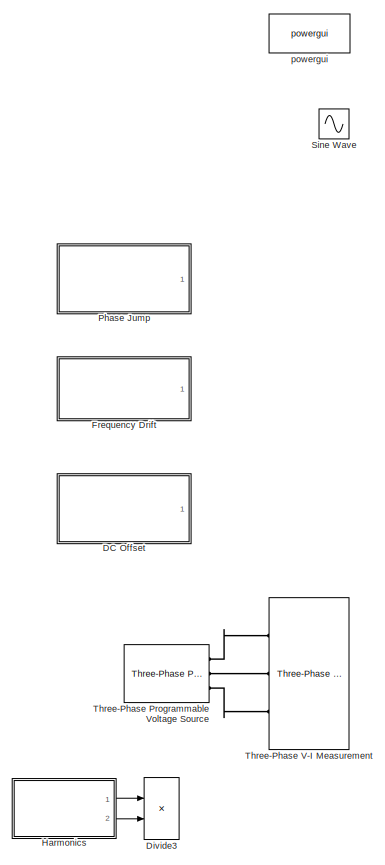
[diagram: root canvas - part 1/2, left side, full height]
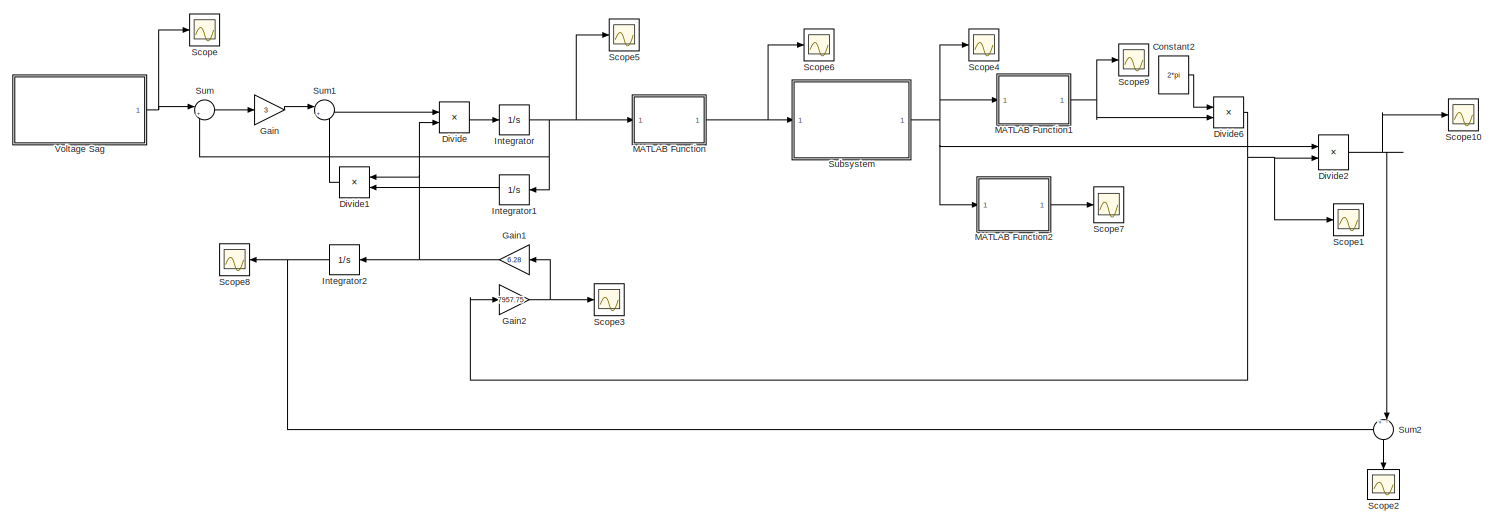
[diagram: root canvas - part 2/2, full width, middle band]
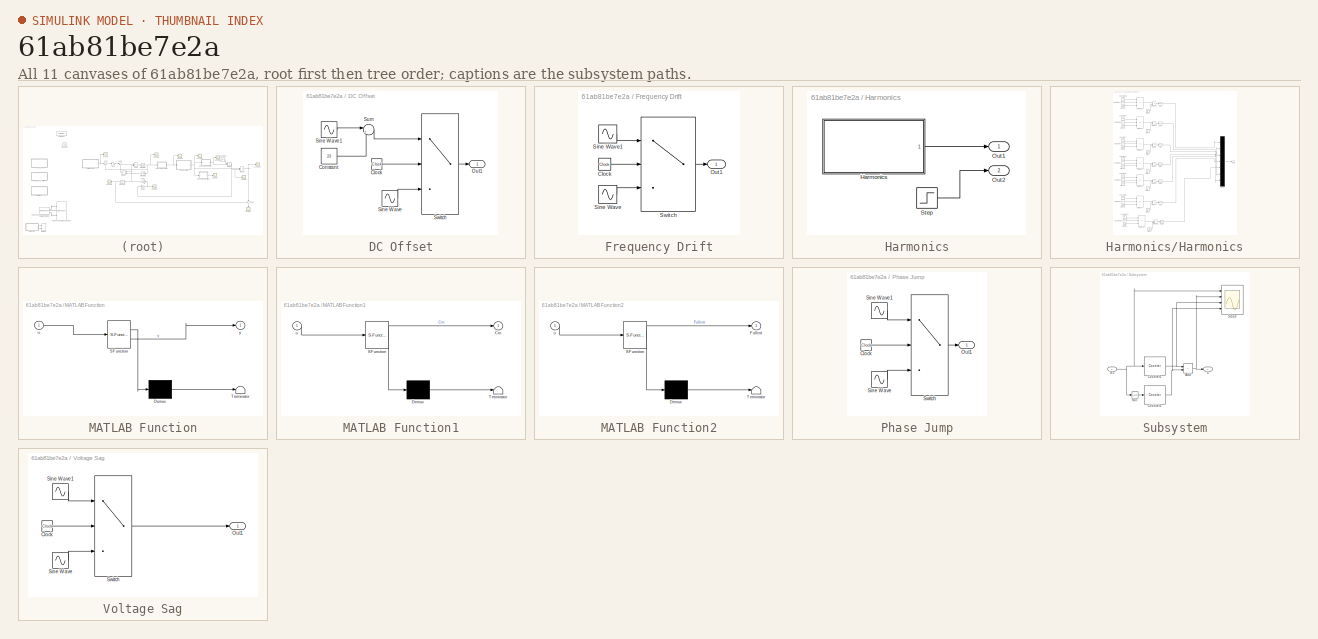
[diagram: thumbnail index - all 11 canvases of the model, root first then tree order]
MODEL slx_61ab81be7e2a
KIND model
CONFIG AbsTol = auto
CONFIG EnableMultiTasking = off
CONFIG FixedStep = auto
CONFIG MaxStep = auto
CONFIG MinStep = auto
CONFIG RelTol = 1e-3
CONFIG SampleTimeConstraint = Unconstrained
CONFIG SolverName = VariableStepAuto
CONFIG StartTime = 0.0
CONFIG StopTime = 2
BLOCK [Constant] Constant2
  Value = 2*pi
BLOCK [SubSystem] DC Offset
  Ports = [0, 1]
  RequestExecContextInheritance = off
BLOCK [Clock] DC Offset/Clock
BLOCK [Constant] DC Offset/Constant
  Value = 23
BLOCK [Outport] DC Offset/Out1
BLOCK [Sin] DC Offset/Sine Wave
  Amplitude = 230
  Frequency = 314.16
  Ports = [0, 1]
  SampleTime = 0.000001
BLOCK [Sin] DC Offset/Sine Wave1
  Amplitude = 230
  Frequency = 314.16
  Ports = [0, 1]
  SampleTime = 0.000001
BLOCK [Sum] DC Offset/Sum
  Inputs = |++
  Ports = [2, 1]
BLOCK [Switch] DC Offset/Switch
  Criteria = u2 > Threshold
  InputSameDT = off
  SaturateOnIntegerOverflow = off
  Threshold = 0.145
BLOCK [Product] Divide
  Inputs = **
  Ports = [2, 1]
BLOCK [Product] Divide1
  Inputs = **
  NameLocation = top
  Ports = [2, 1]
BLOCK [Product] Divide2
  Inputs = **
  Ports = [2, 1]
BLOCK [Product] Divide3
  Inputs = **
  Ports = [2, 1]
BLOCK [Product] Divide6
  Inputs = */
  Ports = [2, 1]
BLOCK [SubSystem] Frequency Drift
  Ports = [0, 1]
  RequestExecContextInheritance = off
BLOCK [Clock] Frequency Drift/Clock
BLOCK [Outport] Frequency Drift/Out1
BLOCK [Sin] Frequency Drift/Sine Wave
  Amplitude = 230
  Frequency = 314.16
  Ports = [0, 1]
  SampleTime = 0.000001
BLOCK [Sin] Frequency Drift/Sine Wave1
  Amplitude = 230
  Frequency = 333.01
  Phase = pi
  Ports = [0, 1]
  SampleTime = 0.000001
BLOCK [Switch] Frequency Drift/Switch
  Criteria = u2 > Threshold
  InputSameDT = off
  SaturateOnIntegerOverflow = off
  Threshold = 0.145
BLOCK [Gain] Gain
  Gain = 3
BLOCK [Gain] Gain1
  Gain = 6.28
  NameLocation = top
BLOCK [Gain] Gain2
  Gain = 7957.75
BLOCK [SubSystem] Harmonics
  Ports = [0, 2]
  RequestExecContextInheritance = off
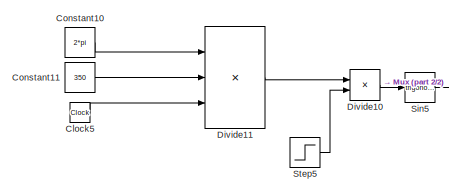
[diagram: Harmonics/Harmonics - part 1/2, top left region]
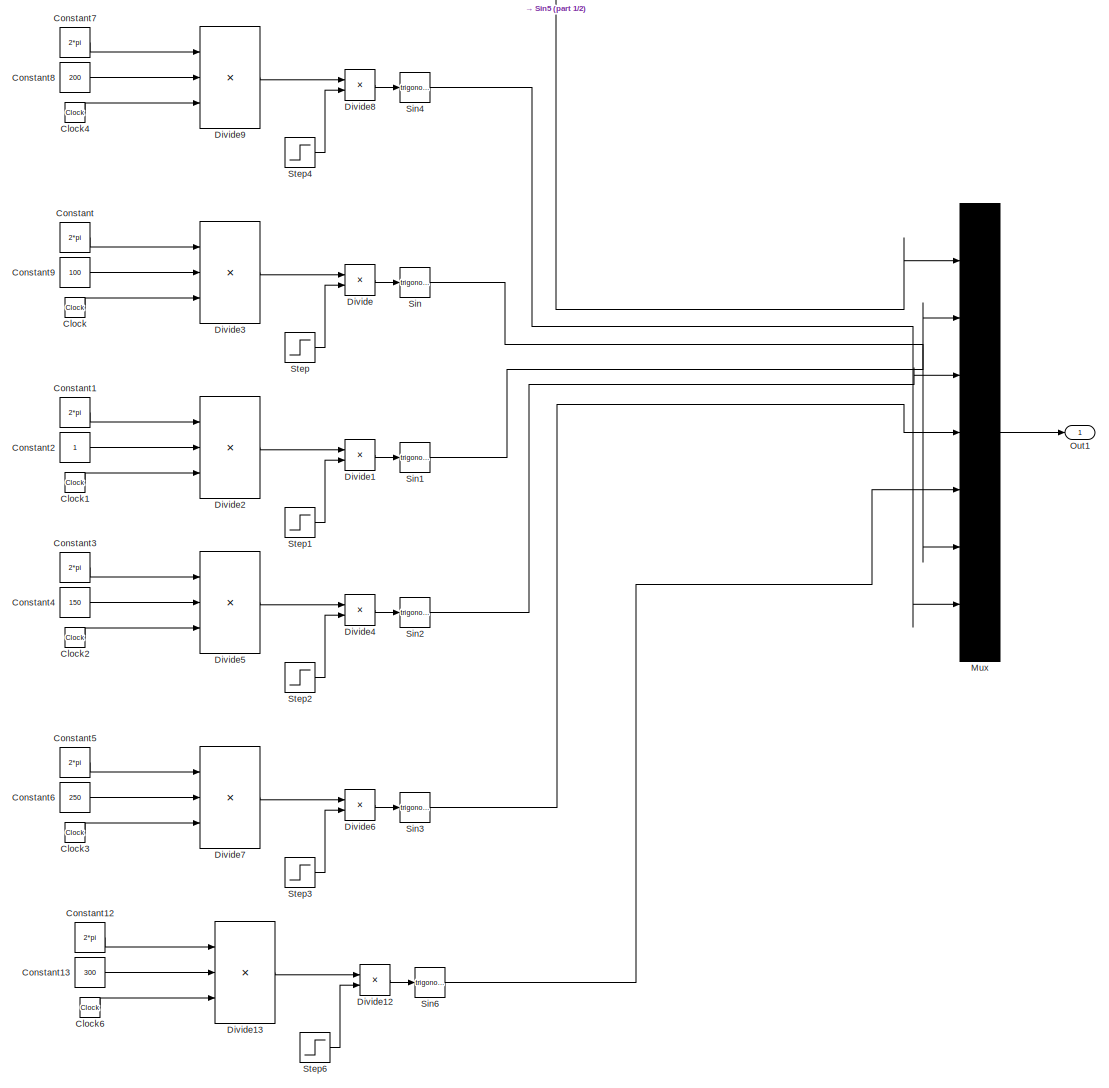
[diagram: Harmonics/Harmonics - part 2/2, most of the canvas]
BLOCK [SubSystem] Harmonics/Harmonics
  Ports = [0, 1]
  RequestExecContextInheritance = off
BLOCK [Clock] Harmonics/Harmonics/Clock
BLOCK [Clock] Harmonics/Harmonics/Clock1
BLOCK [Clock] Harmonics/Harmonics/Clock2
BLOCK [Clock] Harmonics/Harmonics/Clock3
BLOCK [Clock] Harmonics/Harmonics/Clock4
BLOCK [Clock] Harmonics/Harmonics/Clock5
BLOCK [Clock] Harmonics/Harmonics/Clock6
BLOCK [Constant] Harmonics/Harmonics/Constant
  Value = 2*pi
BLOCK [Constant] Harmonics/Harmonics/Constant1
  Value = 2*pi
BLOCK [Constant] Harmonics/Harmonics/Constant10
  Value = 2*pi
BLOCK [Constant] Harmonics/Harmonics/Constant11
  Value = 350
BLOCK [Constant] Harmonics/Harmonics/Constant12
  Value = 2*pi
BLOCK [Constant] Harmonics/Harmonics/Constant13
  Value = 300
BLOCK [Constant] Harmonics/Harmonics/Constant2
BLOCK [Constant] Harmonics/Harmonics/Constant3
  Value = 2*pi
BLOCK [Constant] Harmonics/Harmonics/Constant4
  Value = 150
BLOCK [Constant] Harmonics/Harmonics/Constant5
  Value = 2*pi
BLOCK [Constant] Harmonics/Harmonics/Constant6
  Value = 250
BLOCK [Constant] Harmonics/Harmonics/Constant7
  Value = 2*pi
BLOCK [Constant] Harmonics/Harmonics/Constant8
  Value = 200
BLOCK [Constant] Harmonics/Harmonics/Constant9
  Value = 100
BLOCK [Product] Harmonics/Harmonics/Divide
  Inputs = **
  Ports = [2, 1]
BLOCK [Product] Harmonics/Harmonics/Divide1
  Inputs = **
  Ports = [2, 1]
BLOCK [Product] Harmonics/Harmonics/Divide10
  Inputs = **
  Ports = [2, 1]
BLOCK [Product] Harmonics/Harmonics/Divide11
  Inputs = ***
  Ports = [3, 1]
BLOCK [Product] Harmonics/Harmonics/Divide12
  Inputs = **
  Ports = [2, 1]
BLOCK [Product] Harmonics/Harmonics/Divide13
  Inputs = ***
  Ports = [3, 1]
BLOCK [Product] Harmonics/Harmonics/Divide2
  Inputs = ***
  Ports = [3, 1]
BLOCK [Product] Harmonics/Harmonics/Divide3
  Inputs = ***
  Ports = [3, 1]
BLOCK [Product] Harmonics/Harmonics/Divide4
  Inputs = **
  Ports = [2, 1]
BLOCK [Product] Harmonics/Harmonics/Divide5
  Inputs = ***
  Ports = [3, 1]
BLOCK [Product] Harmonics/Harmonics/Divide6
  Inputs = **
  Ports = [2, 1]
BLOCK [Product] Harmonics/Harmonics/Divide7
  Inputs = ***
  Ports = [3, 1]
BLOCK [Product] Harmonics/Harmonics/Divide8
  Inputs = **
  Ports = [2, 1]
BLOCK [Product] Harmonics/Harmonics/Divide9
  Inputs = ***
  Ports = [3, 1]
BLOCK [Mux] Harmonics/Harmonics/Mux
  DisplayOption = bar
  Inputs = 7
  Ports = [7, 1]
BLOCK [Outport] Harmonics/Harmonics/Out1
BLOCK [Trigonometry] Harmonics/Harmonics/Sin
  Ports = [1, 1]
BLOCK [Trigonometry] Harmonics/Harmonics/Sin1
  Ports = [1, 1]
BLOCK [Trigonometry] Harmonics/Harmonics/Sin2
  Ports = [1, 1]
BLOCK [Trigonometry] Harmonics/Harmonics/Sin3
  Ports = [1, 1]
BLOCK [Trigonometry] Harmonics/Harmonics/Sin4
  Ports = [1, 1]
BLOCK [Trigonometry] Harmonics/Harmonics/Sin5
  Ports = [1, 1]
BLOCK [Trigonometry] Harmonics/Harmonics/Sin6
  Ports = [1, 1]
BLOCK [Step] Harmonics/Harmonics/Step
  After = 11.5
  Before = 230
  SampleTime = 0.000001
  Time = 0.145
BLOCK [Step] Harmonics/Harmonics/Step1
  After = 23
  Before = 230
  SampleTime = 0.000001
  Time = 0.145
BLOCK [Step] Harmonics/Harmonics/Step2
  After = 23
  Before = 230
  SampleTime = 0.000001
  Time = 0.145
BLOCK [Step] Harmonics/Harmonics/Step3
  After = 23
  Before = 230
  SampleTime = 0.000001
  Time = 0.145
BLOCK [Step] Harmonics/Harmonics/Step4
  After = 11.5
  Before = 230
  SampleTime = 0.000001
  Time = 0.145
BLOCK [Step] Harmonics/Harmonics/Step5
  After = 13.8
  Before = 230
  SampleTime = 0.000001
  Time = 0.145
BLOCK [Step] Harmonics/Harmonics/Step6
  After = 6.9
  Before = 230
  SampleTime = 0.000001
  Time = 0.145
BLOCK [Outport] Harmonics/Out1
BLOCK [Outport] Harmonics/Out2
  Port = 2
BLOCK [Step] Harmonics/Step
  After = 230
  Before = 230
  SampleTime = 0.000001
  Time = 0
BLOCK [Integrator] Integrator
  Ports = [1, 1]
BLOCK [Integrator] Integrator1
  NameLocation = top
  Ports = [1, 1]
BLOCK [Integrator] Integrator2
  NameLocation = top
  Ports = [1, 1]
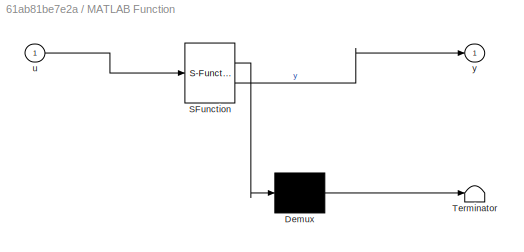
BLOCK [SubSystem] MATLAB Function
  ErrorFcn = Stateflow.Translate.translate
  PermitHierarchicalResolution = ExplicitOnly
  Ports = [1, 1]
  RequestExecContextInheritance = off
  SFBlockType = MATLAB Function
  TreatAsAtomicUnit = on
BLOCK [Demux] MATLAB Function/ Demux 
  Outputs = 1
  Ports = [1, 1]
BLOCK [S-Function] MATLAB Function/ SFunction 
  EnableBusSupport = on
  FunctionName = sf_sfun
  PortCounts = [1 2]
  Ports = [1, 2]
  SFcnIsStateOwnerBlock = off
  SFunctionDeploymentMode = off
  Tag = Stateflow S-Function 2
BLOCK [Terminator] MATLAB Function/ Terminator 
BLOCK [Inport] MATLAB Function/u
BLOCK [Outport] MATLAB Function/y
BLOCK [SubSystem] MATLAB Function1
  ErrorFcn = Stateflow.Translate.translate
  PermitHierarchicalResolution = ExplicitOnly
  Ports = [1, 1]
  RequestExecContextInheritance = off
  SFBlockType = MATLAB Function
  TreatAsAtomicUnit = on
BLOCK [Demux] MATLAB Function1/ Demux 
  Outputs = 1
  Ports = [1, 1]
BLOCK [S-Function] MATLAB Function1/ SFunction 
  EnableBusSupport = on
  FunctionName = sf_sfun
  PortCounts = [1 2]
  Ports = [1, 2]
  SFcnIsStateOwnerBlock = off
  SFunctionDeploymentMode = off
  Tag = Stateflow S-Function 1
BLOCK [Terminator] MATLAB Function1/ Terminator 
BLOCK [Outport] MATLAB Function1/Cm
BLOCK [Inport] MATLAB Function1/u
BLOCK [SubSystem] MATLAB Function2
  ErrorFcn = Stateflow.Translate.translate
  PermitHierarchicalResolution = ExplicitOnly
  Ports = [1, 1]
  RequestExecContextInheritance = off
  SFBlockType = MATLAB Function
  TreatAsAtomicUnit = on
BLOCK [Demux] MATLAB Function2/ Demux 
  Outputs = 1
  Ports = [1, 1]
BLOCK [S-Function] MATLAB Function2/ SFunction 
  EnableBusSupport = on
  FunctionName = sf_sfun
  PortCounts = [1 2]
  Ports = [1, 2]
  SFcnIsStateOwnerBlock = off
  SFunctionDeploymentMode = off
  Tag = Stateflow S-Function 3
BLOCK [Terminator] MATLAB Function2/ Terminator 
BLOCK [Outport] MATLAB Function2/Fullcnt
BLOCK [Inport] MATLAB Function2/u
BLOCK [SubSystem] Phase Jump
  Ports = [0, 1]
  RequestExecContextInheritance = off
BLOCK [Clock] Phase Jump/Clock
BLOCK [Outport] Phase Jump/Out1
BLOCK [Sin] Phase Jump/Sine Wave
  Amplitude = 230
  Frequency = 314.16
  Ports = [0, 1]
  SampleTime = 0.000001
BLOCK [Sin] Phase Jump/Sine Wave1
  Amplitude = 230
  Frequency = 314.16
  Phase = 0.4167*pi
  Ports = [0, 1]
  SampleTime = 0.000001
BLOCK [Switch] Phase Jump/Switch
  Criteria = u2 > Threshold
  InputSameDT = off
  SaturateOnIntegerOverflow = off
  Threshold = 0.145
BLOCK [Scope] Scope
  Floating = off
  NumInputPorts = 1
  Ports = [1]
  ScopeSpecificationString = Simulink.scopes.TimeScopeBlockCfg('CurrentConfiguration', extmgr.ConfigurationSet(extmgr.Configuration('Core','General UI',true),extmgr.Configuration('Core','Source UI',true),extmgr.Configuration('Sources','WiredSimulink',true,'DataLoggingVariableName','ScopeData1'),extmgr.Configuration('Visuals','Time Domain',true,'SerializedDisplays',{struct('MinYLimReal','-283.16273','MaxYLimReal','255.89769','...<+1403ch>
BLOCK [Scope] Scope1
  Floating = off
  NumInputPorts = 1
  Ports = [1]
  ScopeSpecificationString = Simulink.scopes.TimeScopeBlockCfg('CurrentConfiguration', extmgr.ConfigurationSet(extmgr.Configuration('Core','General UI',true),extmgr.Configuration('Core','Source UI',true),extmgr.Configuration('Sources','WiredSimulink',true,'DataLoggingVariableName','ScopeData2'),extmgr.Configuration('Visuals','Time Domain',true,'SerializedDisplays',{struct('MinYLimReal','-0.0465','MaxYLimReal','0.12134','YLabe...<+1414ch>
BLOCK [Scope] Scope10
  Floating = off
  NumInputPorts = 1
  Ports = [1]
  ScopeSpecificationString = Simulink.scopes.TimeScopeBlockCfg('CurrentConfiguration', extmgr.ConfigurationSet(extmgr.Configuration('Core','General UI',true),extmgr.Configuration('Core','Source UI',true),extmgr.Configuration('Sources','WiredSimulink',true,'DataLoggingVariableName','ScopeData3'),extmgr.Configuration('Visuals','Time Domain',true,'SerializedDisplays',{struct('MinYLimReal','-0.78728','MaxYLimReal','7.3327','YLabe...<+1436ch>
BLOCK [Scope] Scope2
  Floating = off
  NameLocation = left
  NumInputPorts = 1
  Ports = [1]
  ScopeSpecificationString = Simulink.scopes.TimeScopeBlockCfg('CurrentConfiguration', extmgr.ConfigurationSet(extmgr.Configuration('Core','General UI',true),extmgr.Configuration('Core','Source UI',true),extmgr.Configuration('Sources','WiredSimulink',true,'DataLoggingVariableName','ScopeData4'),extmgr.Configuration('Visuals','Time Domain',true,'SerializedDisplays',{struct('MinYLimReal','-47.66894','MaxYLimReal','397.58866','Y...<+1447ch>
BLOCK [Scope] Scope3
  Floating = off
  NumInputPorts = 1
  Ports = [1]
  ScopeSpecificationString = Simulink.scopes.TimeScopeBlockCfg('CurrentConfiguration', extmgr.ConfigurationSet(extmgr.Configuration('Core','General UI',true),extmgr.Configuration('Core','Source UI',true),extmgr.Configuration('Sources','WiredSimulink',true,'DataLoggingVariableName','ScopeData5','DataLogging',true,'DataLoggingSaveFormat','StructureWithTime'),extmgr.Configuration('Visuals','Time Domain',true,'SerializedDisplays'...<+1627ch>
BLOCK [Scope] Scope4
  Floating = off
  NumInputPorts = 1
  Ports = [1]
  ScopeSpecificationString = Simulink.scopes.TimeScopeBlockCfg('CurrentConfiguration', extmgr.ConfigurationSet(extmgr.Configuration('Core','General UI',true),extmgr.Configuration('Core','Source UI',true),extmgr.Configuration('Sources','WiredSimulink',true,'DataLoggingVariableName','ScopeData6'),extmgr.Configuration('Visuals','Time Domain',true,'SerializedDisplays',{struct('MinYLimReal','-96.91629','MaxYLimReal','1118.24208','...<+1576ch>
BLOCK [Scope] Scope5
  Floating = off
  NumInputPorts = 1
  Ports = [1]
  ScopeSpecificationString = Simulink.scopes.TimeScopeBlockCfg('CurrentConfiguration', extmgr.ConfigurationSet(extmgr.Configuration('Core','General UI',true),extmgr.Configuration('Core','Source UI',true),extmgr.Configuration('Sources','WiredSimulink',true,'DataLoggingVariableName','ScopeData7'),extmgr.Configuration('Visuals','Time Domain',true,'SerializedDisplays',{struct('MinYLimReal','-256.91145','MaxYLimReal','265.68898','...<+1464ch>
BLOCK [Scope] Scope6
  Floating = off
  NumInputPorts = 1
  Ports = [1]
  ScopeSpecificationString = Simulink.scopes.TimeScopeBlockCfg('CurrentConfiguration', extmgr.ConfigurationSet(extmgr.Configuration('Core','General UI',true),extmgr.Configuration('Core','Source UI',true),extmgr.Configuration('Sources','WiredSimulink',true,'DataLoggingVariableName','ScopeData8'),extmgr.Configuration('Visuals','Time Domain',true,'SerializedDisplays',{struct('MinYLimReal','-0.125','MaxYLimReal','1.125','YLabelRe...<+1443ch>
BLOCK [Scope] Scope7
  Floating = off
  NumInputPorts = 1
  Ports = [1]
  ScopeSpecificationString = Simulink.scopes.TimeScopeBlockCfg('CurrentConfiguration', extmgr.ConfigurationSet(extmgr.Configuration('Core','General UI',true),extmgr.Configuration('Core','Source UI',true),extmgr.Configuration('Sources','WiredSimulink',true,'DataLoggingVariableName','ScopeData9'),extmgr.Configuration('Visuals','Time Domain',true,'SerializedDisplays',{struct('MinYLimReal','-251.625','MaxYLimReal','2264.625','YLa...<+1509ch>
BLOCK [Scope] Scope8
  Floating = off
  NameLocation = top
  NumInputPorts = 1
  Ports = [1]
  ScopeSpecificationString = Simulink.scopes.TimeScopeBlockCfg('CurrentConfiguration', extmgr.ConfigurationSet(extmgr.Configuration('Core','General UI',true),extmgr.Configuration('Core','Source UI',true),extmgr.Configuration('Sources','WiredSimulink',true,'DataLoggingVariableName','ScopeData10','DataLoggingSaveFormat','Array','DataLoggingLimitDataPoints',true,'DataLoggingDecimation','1'),extmgr.Configuration('Visuals','Time D...<+1702ch>
BLOCK [Scope] Scope9
  Floating = off
  NumInputPorts = 1
  Ports = [1]
  ScopeSpecificationString = Simulink.scopes.TimeScopeBlockCfg('CurrentConfiguration', extmgr.ConfigurationSet(extmgr.Configuration('Core','General UI',true),extmgr.Configuration('Core','Source UI',true),extmgr.Configuration('Sources','WiredSimulink',true,'DataLoggingVariableName','ScopeData11'),extmgr.Configuration('Visuals','Time Domain',true,'SerializedDisplays',{struct('MinYLimReal','999.33657','MaxYLimReal','1000.5477','...<+1469ch>
BLOCK [Sin] Sine Wave
  Amplitude = 230
  Frequency = 2*pi*50
  Ports = [0, 1]
  SampleTime = 0.000001
BLOCK [SubSystem] Subsystem
  Ports = [1, 1]
  RequestExecContextInheritance = off
BLOCK [Sum] Subsystem/Add
  IconShape = rectangular
  Ports = [2, 1]
BLOCK [Reference] Subsystem/Counter1  REF=dspswit3/Counter
  Ports = [1, 1]
  SourceBlock = dspswit3/Counter
  SourceProductBaseCode = DS
  SourceType = Counter
BLOCK [Reference] Subsystem/Counter3  REF=dspswit3/Counter
  Ports = [1, 1]
  SourceBlock = dspswit3/Counter
  SourceProductBaseCode = DS
  SourceType = Counter
BLOCK [Inport] Subsystem/In1
BLOCK [Logic] Subsystem/NOT
  AllPortsSameDT = off
  IconShape = distinctive
  Operator = NOT
  OutDataTypeStr = boolean
  Ports = [1, 1]
BLOCK [Scope] Subsystem/Scope
  Floating = off
  NumInputPorts = 4
  Ports = [4]
  ScopeSpecificationString = Simulink.scopes.TimeScopeBlockCfg('CurrentConfiguration', extmgr.ConfigurationSet(extmgr.Configuration('Core','General UI',true),extmgr.Configuration('Core','Source UI',true),extmgr.Configuration('Sources','WiredSimulink',true,'DataLoggingVariableName','ScopeData1'),extmgr.Configuration('Visuals','Time Domain',true,'SerializedDisplays',{struct('MinYLimReal','-0.125','MaxYLimReal','1.125','YLabelRe...<+3519ch>
BLOCK [Outport] Subsystem/u
BLOCK [Sum] Sum
  Inputs = |+-
  Ports = [2, 1]
BLOCK [Sum] Sum1
  Inputs = |+-
  Ports = [2, 1]
BLOCK [Sum] Sum2
  Inputs = +-
  NameLocation = left
  Ports = [2, 1]
BLOCK [Reference] Three-Phase Programmable Voltage Source  REF=spsThreePhaseProgrammableVoltageSourceLib/Three-Phase
Programmable
Voltage Source
  Commented = on
  Ports = [0, 0, 0, 0, 0, 1, 3]
  SourceBlock = spsThreePhaseProgrammableVoltageSourceLib/Three-Phase\nProgrammable\nVoltage Source
  SourceProductBaseCode = PS
  SourceType = Three-Phase Programmable Voltage Source
BLOCK [Reference] Three-Phase V-I Measurement  REF=spsThreePhaseVIMeasurementLib/Three-Phase
V-I Measurement
  Commented = on
  Ports = [0, 2, 0, 0, 0, 3, 3]
  SourceBlock = spsThreePhaseVIMeasurementLib/Three-Phase\nV-I Measurement
  SourceProductBaseCode = PS
  SourceType = Three-Phase VI Measurement
BLOCK [SubSystem] Voltage Sag
  Ports = [0, 1]
  RequestExecContextInheritance = off
BLOCK [Clock] Voltage Sag/Clock
BLOCK [Outport] Voltage Sag/Out1
BLOCK [Sin] Voltage Sag/Sine Wave
  Amplitude = 230
  Frequency = 314.16
  Ports = [0, 1]
  SampleTime = 0.000001
BLOCK [Sin] Voltage Sag/Sine Wave1
  Amplitude = 138
  Frequency = 314.16
  Ports = [0, 1]
  SampleTime = 0.000001
BLOCK [Switch] Voltage Sag/Switch
  Criteria = u2 > Threshold
  InputSameDT = off
  SaturateOnIntegerOverflow = off
  Threshold = 0.145
BLOCK [Reference] powergui  REF=spspowerguiLib/powergui
  Ports = []
  Priority = 1
  SourceBlock = spspowerguiLib/powergui
  SourceProductBaseCode = PS
  SourceType = PSB option menu block
LINE Constant2:1 -> Divide6:1
LINE DC Offset/Clock:1 -> DC Offset/Switch:2
LINE DC Offset/Constant:1 -> DC Offset/Sum:2
LINE DC Offset/Sine Wave1:1 -> DC Offset/Sum:1
LINE DC Offset/Sine Wave:1 -> DC Offset/Switch:3
LINE DC Offset/Sum:1 -> DC Offset/Switch:1
LINE DC Offset/Switch:1 -> DC Offset/Out1:1
LINE Divide1:1 -> Sum1:2
NET Divide2:1 -> Scope10:1, Sum2:2
NET Divide6:1 -> Divide2:2, Gain2:1, Scope1:1
LINE Divide:1 -> Integrator:1
LINE Frequency Drift/Clock:1 -> Frequency Drift/Switch:2
LINE Frequency Drift/Sine Wave1:1 -> Frequency Drift/Switch:1
LINE Frequency Drift/Sine Wave:1 -> Frequency Drift/Switch:3
LINE Frequency Drift/Switch:1 -> Frequency Drift/Out1:1
NET Gain1:1 -> Divide1:1, Divide:2, Integrator2:1
NET Gain2:1 -> Gain1:1, Scope3:1
LINE Gain:1 -> Sum1:1
LINE Harmonics/Harmonics/Clock1:1 -> Harmonics/Harmonics/Divide2:3
LINE Harmonics/Harmonics/Clock2:1 -> Harmonics/Harmonics/Divide5:3
LINE Harmonics/Harmonics/Clock3:1 -> Harmonics/Harmonics/Divide7:3
LINE Harmonics/Harmonics/Clock4:1 -> Harmonics/Harmonics/Divide9:3
LINE Harmonics/Harmonics/Clock5:1 -> Harmonics/Harmonics/Divide11:3
LINE Harmonics/Harmonics/Clock6:1 -> Harmonics/Harmonics/Divide13:3
LINE Harmonics/Harmonics/Clock:1 -> Harmonics/Harmonics/Divide3:3
LINE Harmonics/Harmonics/Constant10:1 -> Harmonics/Harmonics/Divide11:1
LINE Harmonics/Harmonics/Constant11:1 -> Harmonics/Harmonics/Divide11:2
LINE Harmonics/Harmonics/Constant12:1 -> Harmonics/Harmonics/Divide13:1
LINE Harmonics/Harmonics/Constant13:1 -> Harmonics/Harmonics/Divide13:2
LINE Harmonics/Harmonics/Constant1:1 -> Harmonics/Harmonics/Divide2:1
LINE Harmonics/Harmonics/Constant2:1 -> Harmonics/Harmonics/Divide2:2
LINE Harmonics/Harmonics/Constant3:1 -> Harmonics/Harmonics/Divide5:1
LINE Harmonics/Harmonics/Constant4:1 -> Harmonics/Harmonics/Divide5:2
LINE Harmonics/Harmonics/Constant5:1 -> Harmonics/Harmonics/Divide7:1
LINE Harmonics/Harmonics/Constant6:1 -> Harmonics/Harmonics/Divide7:2
LINE Harmonics/Harmonics/Constant7:1 -> Harmonics/Harmonics/Divide9:1
LINE Harmonics/Harmonics/Constant8:1 -> Harmonics/Harmonics/Divide9:2
LINE Harmonics/Harmonics/Constant9:1 -> Harmonics/Harmonics/Divide3:2
LINE Harmonics/Harmonics/Constant:1 -> Harmonics/Harmonics/Divide3:1
LINE Harmonics/Harmonics/Divide10:1 -> Harmonics/Harmonics/Sin5:1
LINE Harmonics/Harmonics/Divide11:1 -> Harmonics/Harmonics/Divide10:1
LINE Harmonics/Harmonics/Divide12:1 -> Harmonics/Harmonics/Sin6:1
LINE Harmonics/Harmonics/Divide13:1 -> Harmonics/Harmonics/Divide12:1
LINE Harmonics/Harmonics/Divide1:1 -> Harmonics/Harmonics/Sin1:1
LINE Harmonics/Harmonics/Divide2:1 -> Harmonics/Harmonics/Divide1:1
LINE Harmonics/Harmonics/Divide3:1 -> Harmonics/Harmonics/Divide:1
LINE Harmonics/Harmonics/Divide4:1 -> Harmonics/Harmonics/Sin2:1
LINE Harmonics/Harmonics/Divide5:1 -> Harmonics/Harmonics/Divide4:1
LINE Harmonics/Harmonics/Divide6:1 -> Harmonics/Harmonics/Sin3:1
LINE Harmonics/Harmonics/Divide7:1 -> Harmonics/Harmonics/Divide6:1
LINE Harmonics/Harmonics/Divide8:1 -> Harmonics/Harmonics/Sin4:1
LINE Harmonics/Harmonics/Divide9:1 -> Harmonics/Harmonics/Divide8:1
LINE Harmonics/Harmonics/Divide:1 -> Harmonics/Harmonics/Sin:1
LINE Harmonics/Harmonics/Mux:1 -> Harmonics/Harmonics/Out1:1
LINE Harmonics/Harmonics/Sin1:1 -> Harmonics/Harmonics/Mux:2
LINE Harmonics/Harmonics/Sin2:1 -> Harmonics/Harmonics/Mux:3
LINE Harmonics/Harmonics/Sin3:1 -> Harmonics/Harmonics/Mux:4
LINE Harmonics/Harmonics/Sin4:1 -> Harmonics/Harmonics/Mux:7
LINE Harmonics/Harmonics/Sin5:1 -> Harmonics/Harmonics/Mux:1
LINE Harmonics/Harmonics/Sin6:1 -> Harmonics/Harmonics/Mux:5
LINE Harmonics/Harmonics/Sin:1 -> Harmonics/Harmonics/Mux:6
LINE Harmonics/Harmonics/Step1:1 -> Harmonics/Harmonics/Divide1:2
LINE Harmonics/Harmonics/Step2:1 -> Harmonics/Harmonics/Divide4:2
LINE Harmonics/Harmonics/Step3:1 -> Harmonics/Harmonics/Divide6:2
LINE Harmonics/Harmonics/Step4:1 -> Harmonics/Harmonics/Divide8:2
LINE Harmonics/Harmonics/Step5:1 -> Harmonics/Harmonics/Divide10:2
LINE Harmonics/Harmonics/Step6:1 -> Harmonics/Harmonics/Divide12:2
LINE Harmonics/Harmonics/Step:1 -> Harmonics/Harmonics/Divide:2
LINE Harmonics/Harmonics:1 -> Harmonics/Out1:1
LINE Harmonics/Step:1 -> Harmonics/Out2:1
LINE Harmonics:1 -> Divide3:1
LINE Harmonics:2 -> Divide3:2
LINE Integrator1:1 -> Divide1:2
NET Integrator2:1 -> Scope8:1, Sum2:1
NET Integrator:1 -> Integrator1:1, MATLAB Function:1, Scope5:1, Sum:2
NET MATLAB Function1:1 -> Divide6:2, Scope9:1
LINE MATLAB Function2:1 -> Scope7:1
NET MATLAB Function:1 -> Scope6:1, Subsystem:1
LINE Phase Jump/Clock:1 -> Phase Jump/Switch:2
LINE Phase Jump/Sine Wave1:1 -> Phase Jump/Switch:1
LINE Phase Jump/Sine Wave:1 -> Phase Jump/Switch:3
LINE Phase Jump/Switch:1 -> Phase Jump/Out1:1
NET Subsystem/Add:1 -> Subsystem/Scope:2, Subsystem/u:1
NET Subsystem/Counter1:1 -> Subsystem/Add:1, Subsystem/Scope:3
NET Subsystem/Counter3:1 -> Subsystem/Add:2, Subsystem/Scope:4
NET Subsystem/In1:1 -> Subsystem/Counter1:1, Subsystem/NOT:1, Subsystem/Scope:1
LINE Subsystem/NOT:1 -> Subsystem/Counter3:1
NET Subsystem:1 -> Divide2:1, MATLAB Function1:1, MATLAB Function2:1, Scope4:1
LINE Sum1:1 -> Divide:1
LINE Sum2:1 -> Scope2:1
LINE Sum:1 -> Gain:1
LINE Voltage Sag/Clock:1 -> Voltage Sag/Switch:2
LINE Voltage Sag/Sine Wave1:1 -> Voltage Sag/Switch:1
LINE Voltage Sag/Sine Wave:1 -> Voltage Sag/Switch:3
LINE Voltage Sag/Switch:1 -> Voltage Sag/Out1:1
NET Voltage Sag:1 -> Scope:1, Sum:1
PLINE Three-Phase Programmable Voltage Source:RConn1 -- Three-Phase V-I Measurement:LConn1
PLINE Three-Phase Programmable Voltage Source:RConn2 -- Three-Phase V-I Measurement:LConn2
PLINE Three-Phase Programmable Voltage Source:RConn3 -- Three-Phase V-I Measurement:LConn3
note: NET lines group one-source signal fan-out (src -> all destinations, sorted); 1:1 wires keep LINE
CHART MATLAB Function1 states=1 transitions=1
  STATE_LABEL 'eML_blk_kernel()'
  STATE_LABEL 'SCRIPT:\nfunction Cm = max_value(u)\n\npersistent pre_u\npersistent Cm_prev\nflag = 1; % Remove int8 and initialization\n\nif isempty(pre_u)\n    pre_u = 1;\n    Cm_prev=1;\nend\n\nif (pre_u > u)\n    %Cm = pre_u;\n    flag = 0;\nelse \n    %Cm = u;\n    flag = 1;\nend\n%pre_u = Cm;\nif (flag == 0)\n    Cm = pre_u;\n    Cm_prev=Cm;\n    pre_u=u;\n    flag = 1;\nelse\n    pre_u=u;\n    if(Cm_prev~=1)\n\n        Cm=Cm_prev;\n   ...<+47ch>'
CHART MATLAB Function states=1 transitions=1
  STATE_LABEL 'eML_blk_kernel()'
  STATE_LABEL 'SCRIPT:\nfunction y = fcn(u)\n    if u > 0\n        y = 1;\n    else\n       y = 0;\n    end\nend\n'
CHART MATLAB Function2 states=1 transitions=1
  STATE_LABEL 'eML_blk_kernel()'
  STATE_LABEL 'SCRIPT:\nfunction   Fullcnt = full_count(u)\n\npersistent pre_u\npersistent Cm_prev\npersistent cnt  \npersistent Cm\nflag = 1; % Remove int8 and initialization\n\nif isempty(pre_u)\n    pre_u = -1;\n    Cm_prev=1;\n    cnt=0;\n    \nend\n\nif (pre_u > u)\n    %Cm = pre_u;\n    flag = 0;\nelse \n    %Cm = u;\n    flag = 1;\nend\n%pre_u = Cm;\nif (flag == 0)\n    if(mod(cnt,2)==0)\n        Cm = pre_u;\n        Cm_prev=Cm;\n  ...<+255ch>'
CHART  states=0 transitions=0
CHART  states=0 transitions=0
CHART  states=0 transitions=0
